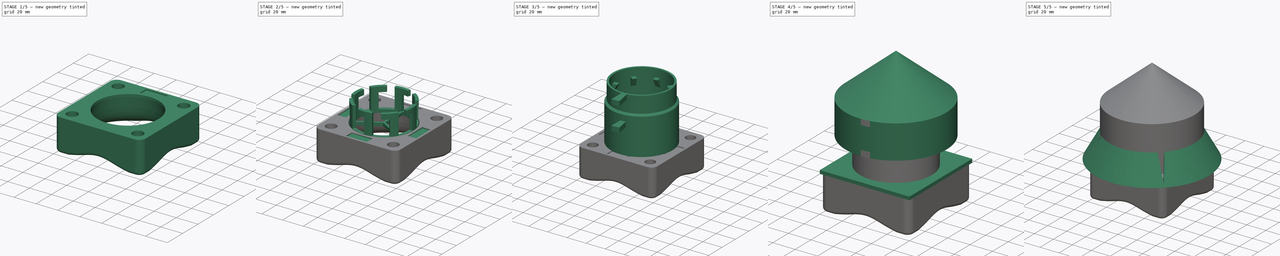
[diagram: build sequence overview — one tinted view per stage of 5, left to right]
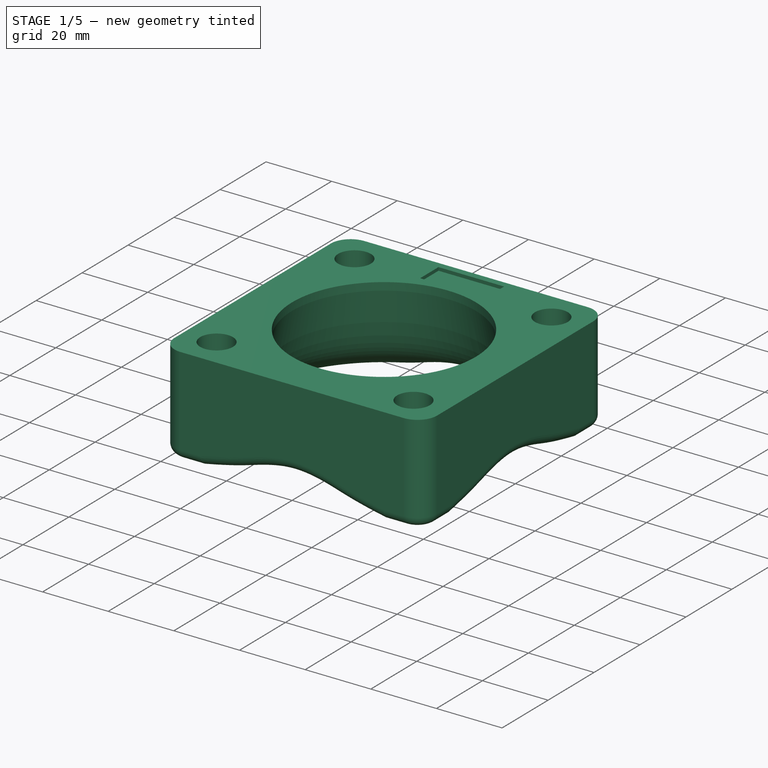
[diagram: stage 1 of 5 — iso view after this stage's code; geometry added in this stage tinted green]
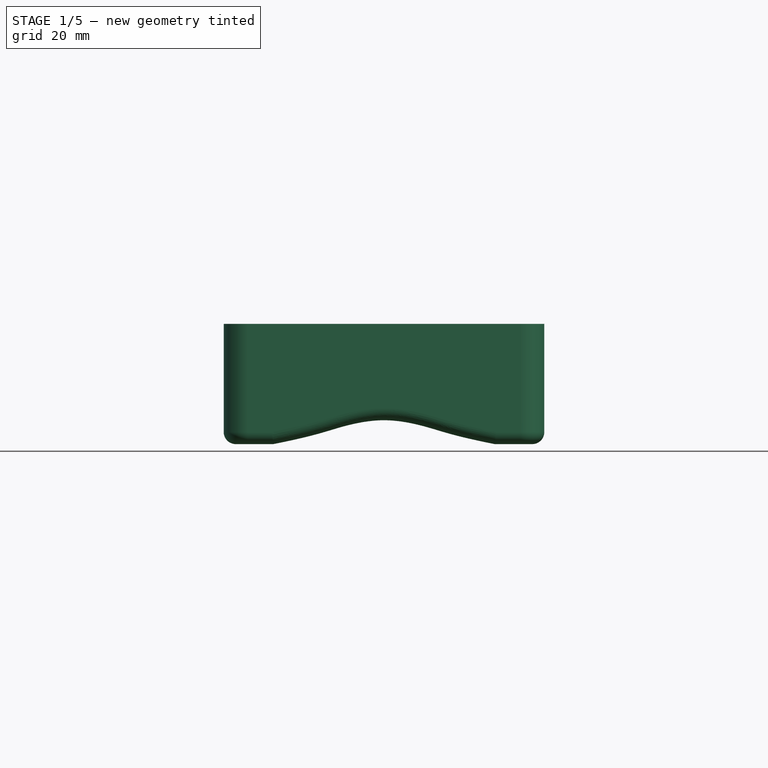
[diagram: stage 1 of 5 — front view after this stage's code; geometry added in this stage tinted green]
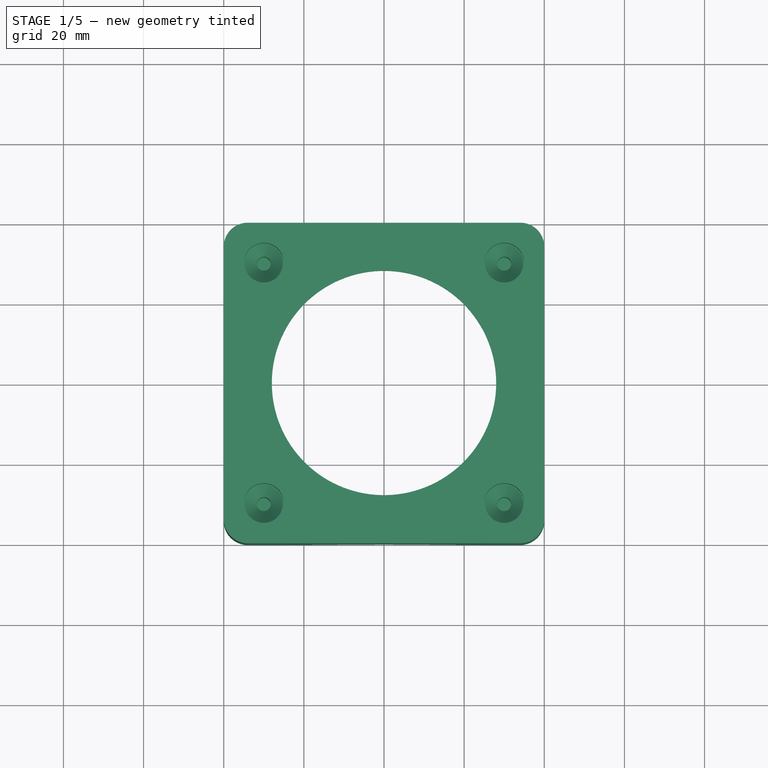
[diagram: stage 1 of 5 — top view after this stage's code; geometry added in this stage tinted green]
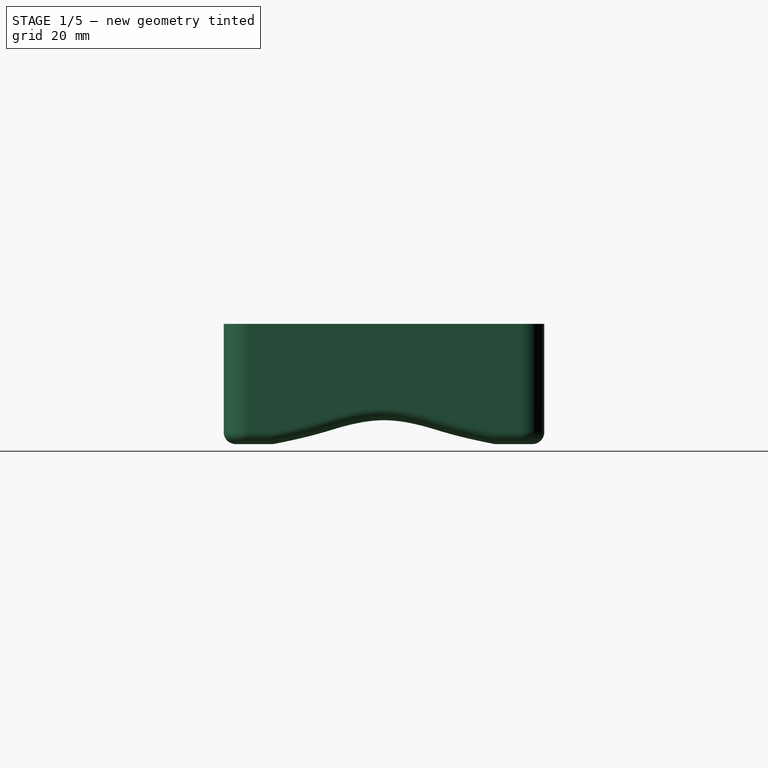
[diagram: stage 1 of 5 — right view after this stage's code; geometry added in this stage tinted green]
FCSTD DOCUMENT  (FreeCAD 0.18.4R)
Label: air-fan-outcome
License: All rights reserved
LicenseURL: http://en.wikipedia.org/wiki/All_rights_reserved
objects: Sketcher::SketchObject×29, PartDesign::Pad×9, PartDesign::Pocket×9, PartDesign::PolarPattern×7, PartDesign::Fillet×5, PartDesign::Revolution×5, PartDesign::Body×5, PartDesign::Chamfer×4, Part::Loft×2, Part::Cut×1, PartDesign::FeatureBase×1, PartDesign::Groove×1
note: 102 computed .brp shape members not serialized (recipe doc carries the construction recipe); baked Part::Feature solids carry a one-line shape summary decoded from their .brp

FEATURE [PartDesign::Body] Body002  label="filter"
  Group = -> [Sketch012,Pad006,Sketch013,Pad007,PolarPattern002,Sketch014,Revolution003,Sketch023,PolarPattern006,Revolution004,PolarPattern007,Chamfer002]
  Origin = -> Origin002
  Placement = pos=(0,0,37) rot=(0,0,1;0.174533rad)
  Tip = -> Chamfer002
FEATURE [Sketcher::SketchObject] Sketch024
  MapMode = 5
  Support = -> [XY_Plane004]
  sketch-geometry (4):
    g0: LineSegment StartX=-40 StartY=-40 StartZ=0 EndX=40 EndY=-40 EndZ=0
    g1: LineSegment StartX=40 StartY=-40 StartZ=0 EndX=40 EndY=40 EndZ=0
    g2: LineSegment StartX=40 StartY=40 StartZ=0 EndX=-40 EndY=40 EndZ=0
    g3: LineSegment StartX=-40 StartY=40 StartZ=0 EndX=-40 EndY=-40 EndZ=0
  constraints (11):
    c: Coincident(g0,g1)
    c: Coincident(g1,g2)
    c: Coincident(g2,g3)
    c: Coincident(g3,g0)
    c: Horizontal(g0)
    c: Horizontal(g2)
    c: Vertical(g1)
    c: Vertical(g3)
    c: DistanceX(g0,g0) = 80
    c: DistanceY(g1,g1) = 80
    c: Symmetric(g2,g0,g-1)
FEATURE [PartDesign::Pad] Pad008
  Length = 30
  Length2 = 100
  Profile = -> Sketch024
  Reversed = true
  Type = 0
FEATURE [PartDesign::Fillet] Fillet002
  Base = -> Pad008 [Edge8,Edge5,Edge1,Edge2]
  BaseFeature = -> Pad008
  Radius = 6
FEATURE [Sketcher::SketchObject] Sketch025
  MapMode = 5
  Support = -> [Fillet002]
  sketch-geometry (1):
    g0: Circle CenterX=0 CenterY=0 CenterZ=0 NormalX=0 NormalY=0 NormalZ=1 AngleXU=0 Radius=28
  constraints (2):
    c: Coincident(g0,g-1)
    c: Diameter(g0) = 56
FEATURE [PartDesign::Pocket] Pocket005
  BaseFeature = -> Fillet002
  Length = 30
  Length2 = 100
  Profile = -> Sketch025
  Type = 0
FEATURE [Sketcher::SketchObject] Sketch026
  MapMode = 5
  Support = -> [Pocket005]
  sketch-geometry (4):
    g0: Circle CenterX=-30 CenterY=30 CenterZ=0 NormalX=0 NormalY=0 NormalZ=1 AngleXU=0 Radius=1.75
    g1: Circle CenterX=30 CenterY=30 CenterZ=0 NormalX=0 NormalY=0 NormalZ=1 AngleXU=0 Radius=1.75
    g2: Circle CenterX=30 CenterY=-30 CenterZ=0 NormalX=0 NormalY=0 NormalZ=1 AngleXU=0 Radius=1.75
    g3: Circle CenterX=-30 CenterY=-30 CenterZ=0 NormalX=0 NormalY=0 NormalZ=1 AngleXU=0 Radius=1.75
  constraints (12):
    c: DistanceX(g0,g-1) = 30
    c: DistanceY(g-1,g0) = 30
    c: DistanceY(g-1,g1) = 30
    c: DistanceY(g2,g-1) = 30
    c: DistanceY(g3,g-1) = 30
    c: DistanceX(g3,g-1) = 30
    c: DistanceX(g-1,g2) = 30
    c: DistanceX(g-1,g1) = 30
    c: Diameter(g0) = 3.5
    c: Diameter(g1) = 3.5
    c: Diameter(g2) = 3.5
    c: Diameter(g3) = 3.5
FEATURE [PartDesign::Pocket] Pocket006
  BaseFeature = -> Pocket005
  Length = 26
  Length2 = 100
  Profile = -> Sketch026
  Type = 0
FEATURE [Sketcher::SketchObject] Sketch027
  ExternalGeometry = -> [Pocket006]
  MapMode = 5
  Support = -> [Pocket006]
  sketch-geometry (4):
    g0: Circle CenterX=-30 CenterY=-30 CenterZ=0 NormalX=0 NormalY=0 NormalZ=1 AngleXU=0 Radius=5
    g1: Circle CenterX=30 CenterY=-30 CenterZ=0 NormalX=0 NormalY=0 NormalZ=1 AngleXU=0 Radius=5
    g2: Circle CenterX=30 CenterY=30 CenterZ=0 NormalX=0 NormalY=0 NormalZ=1 AngleXU=0 Radius=5
    g3: Circle CenterX=-30 CenterY=30 CenterZ=0 NormalX=0 NormalY=0 NormalZ=1 AngleXU=0 Radius=5
  constraints (8):
    c: Coincident(g0,g-6)
    c: Coincident(g1,g-5)
    c: Coincident(g2,g-4)
    c: Coincident(g3,g-3)
    c: Diameter(g3) = 10
    c: Diameter(g2) = 10
    c: Diameter(g1) = 10
    c: Diameter(g0) = 10
FEATURE [PartDesign::Pocket] Pocket007
  BaseFeature = -> Pocket006
  Length = 10
  Length2 = 100
  Profile = -> Sketch027
  Type = 0
FEATURE [PartDesign::Chamfer] Chamfer003
  Base = -> Pocket007 [Edge43,Edge42,Edge41,Edge40]
  BaseFeature = -> Pocket007
  Size = 3
FEATURE [Sketcher::SketchObject] Sketch028
  AttachmentOffset = pos=(0,0,0) rot=(0,1,0;0.785398rad)
  MapMode = 5
  Placement = pos=(0,0,0) rot=(0.862856,0.357407,0.357407;1.71777rad)
  Support = -> [XZ_Plane004]
  sketch-geometry (15):
    g0-g5: Circle [constr] x6 (B-spline internal-alignment scaffolding for g6; pole/knot coordinates omitted)
    g6: BSplineCurve PolesCount=6 KnotsCount=4 Degree=3 IsPeriodic=0
    g7-g10: GeomPoint [constr] x4 (B-spline internal-alignment scaffolding for g6; pole/knot coordinates omitted)
    g11: LineSegment StartX=-47.1314 StartY=-30.3808 StartZ=0 EndX=-30.2273 EndY=-45.7605 EndZ=0
    g12: LineSegment StartX=-30.2273 StartY=-45.7605 StartZ=0 EndX=-12.9068 EndY=-36.4214 EndZ=0
    g13: LineSegment StartX=-12.9068 StartY=-36.4214 StartZ=0 EndX=-23.7892 EndY=4.70168 EndZ=0
    g14: LineSegment StartX=-23.7892 StartY=4.70168 StartZ=0 EndX=-27.1906 EndY=3.55555 EndZ=0
  constraints (9):
    c: Radius(g0) = 2
    c: Equal(g0, g1-g5) x5
    c: InternalAlignment(g0-g5 -> g6) x6
    c: InternalAlignment(g7-g10 -> g6) x4
    c: Coincident(g11,g6)
    c: Coincident(g11,g12)
    c: Coincident(g12,g13)
    c: Coincident(g13,g14)
    c: Coincident(g14,g6)
FEATURE [PartDesign::Groove] Groove
  Angle = 360
  Axis = (0,-2e-16,1)
  Base = (0,0,0)
  BaseFeature = -> Chamfer003
  Profile = -> Sketch028
  ReferenceAxis = -> Sketch028 [V_Axis]
  Reversed = true
FEATURE [PartDesign::Fillet] Fillet003
  Base = -> Groove [Edge22,Edge23,Edge24,Edge31,Edge42,Edge43,Edge44,Edge36]
  BaseFeature = -> Groove
  Radius = 3
FEATURE [Sketcher::SketchObject] Sketch029
  MapMode = 5
  Support = -> [Fillet003]
  sketch-geometry (4):
    g0: LineSegment StartX=-10 StartY=38 StartZ=0 EndX=10 EndY=38 EndZ=0
    g1: LineSegment StartX=10 StartY=38 StartZ=0 EndX=10 EndY=30 EndZ=0
    g2: LineSegment StartX=10 StartY=30 StartZ=0 EndX=-10 EndY=30 EndZ=0
    g3: LineSegment StartX=-10 StartY=30 StartZ=0 EndX=-10 EndY=38 EndZ=0
  constraints (11):
    c: Coincident(g0,g1)
    c: Coincident(g1,g2)
    c: Coincident(g2,g3)
    c: Coincident(g3,g0)
    c: Horizontal(g2)
    c: Vertical(g1)
    c: Vertical(g3)
    c: DistanceX(g0,g0) = 20
    c: Symmetric(g0,g0,g-2)
    c: DistanceY(g-1,g0) = 38
    c: DistanceY(g1,g1) = 8
FEATURE [PartDesign::Pocket] Pocket008
  BaseFeature = -> Fillet003
  Length = 1
  Length2 = 100
  Profile = -> Sketch029
  Type = 0
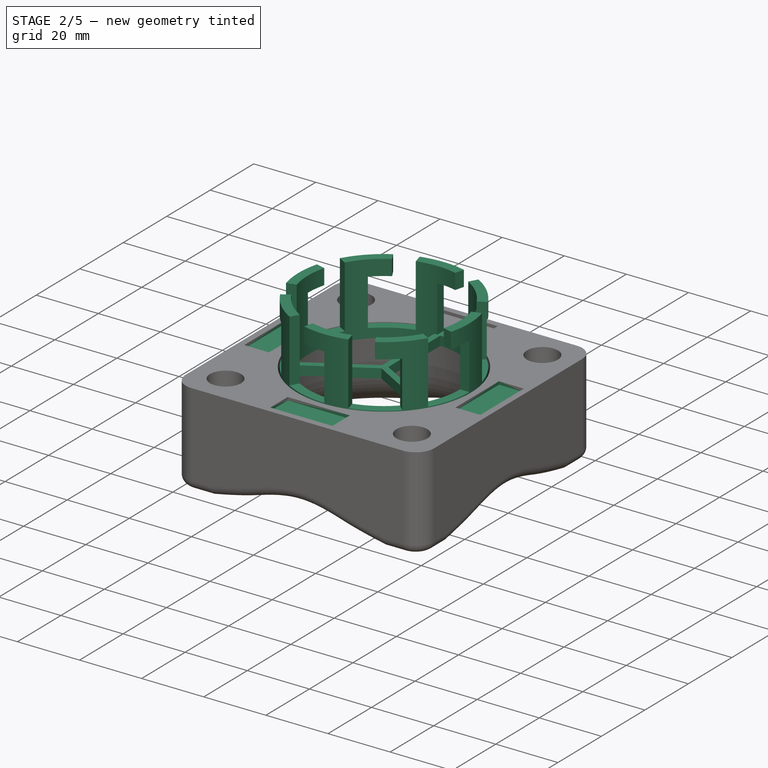
[diagram: stage 2 of 5 — iso view after this stage's code; geometry added in this stage tinted green]
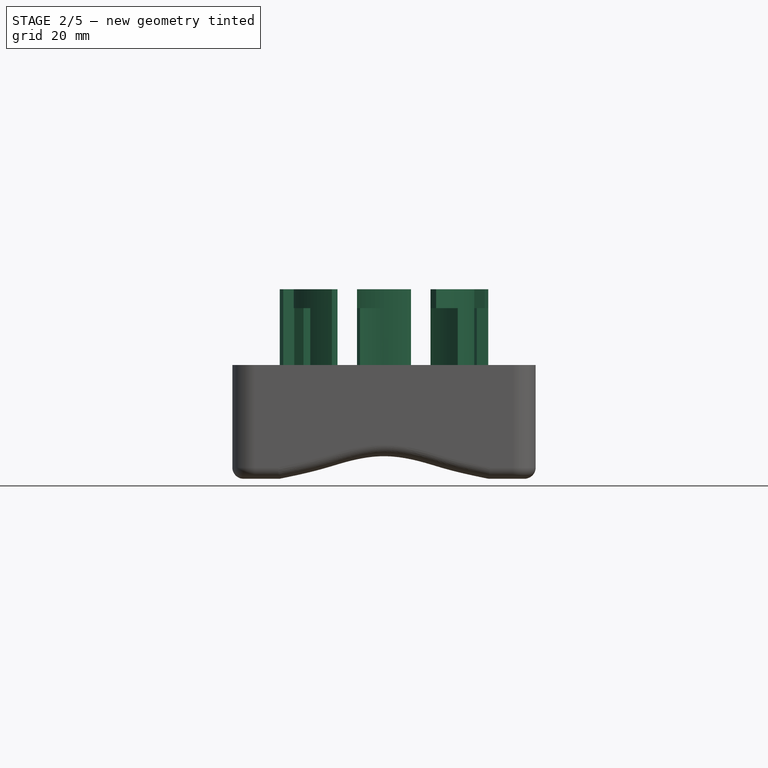
[diagram: stage 2 of 5 — front view after this stage's code; geometry added in this stage tinted green]
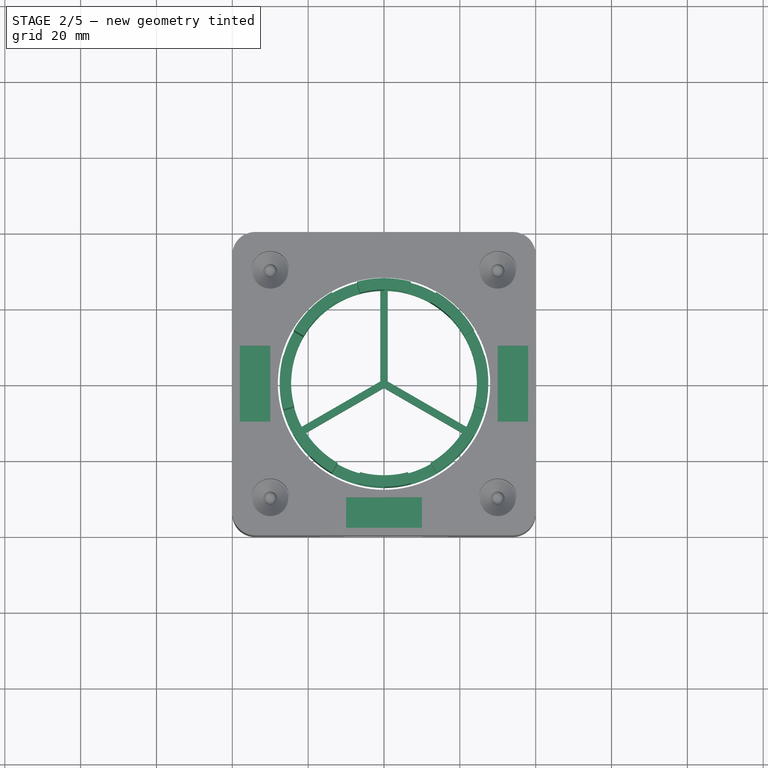
[diagram: stage 2 of 5 — top view after this stage's code; geometry added in this stage tinted green]
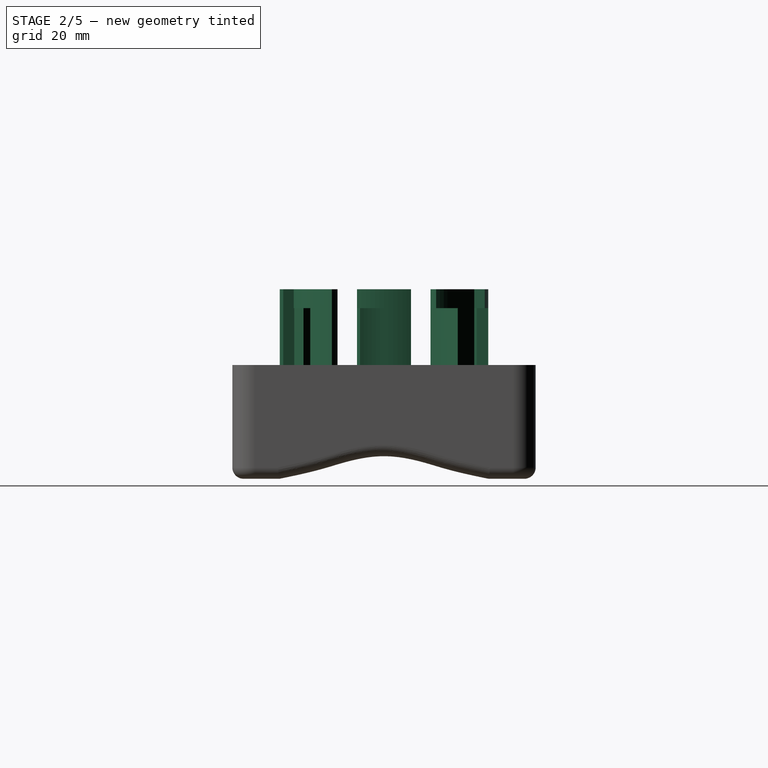
[diagram: stage 2 of 5 — right view after this stage's code; geometry added in this stage tinted green]
FEATURE [Sketcher::SketchObject] Sketch012
  MapMode = 5
  Support = -> [XY_Plane002]
  sketch-geometry (2):
    g0: Circle CenterX=0 CenterY=0 CenterZ=0 NormalX=0 NormalY=0 NormalZ=1 AngleXU=0 Radius=27.5
    g1: Circle CenterX=0 CenterY=0 CenterZ=0 NormalX=0 NormalY=0 NormalZ=1 AngleXU=0 Radius=24.5
  constraints (4):
    c: Coincident(g0,g-1)
    c: Coincident(g1,g0)
    c: Diameter(g0) = 55
    c: Diameter(g1) = 49
FEATURE [PartDesign::Pad] Pad006
  Length = 3
  Length2 = 100
  Profile = -> Sketch012
  Reversed = true
  Type = 0
FEATURE [Sketcher::SketchObject] Sketch013
  MapMode = 5
  Support = -> [XY_Plane002]
  sketch-geometry (4):
    g0: LineSegment StartX=-1 StartY=27 StartZ=0 EndX=1 EndY=27 EndZ=0
    g1: LineSegment StartX=1 StartY=27 StartZ=0 EndX=1 EndY=0 EndZ=0
    g2: LineSegment StartX=1 StartY=0 StartZ=0 EndX=-1 EndY=0 EndZ=0
    g3: LineSegment StartX=-1 StartY=0 StartZ=0 EndX=-1 EndY=27 EndZ=0
  constraints (12):
    c: Coincident(g0,g1)
    c: Coincident(g1,g2)
    c: Coincident(g2,g3)
    c: Coincident(g3,g0)
    c: Horizontal(g0)
    c: Horizontal(g2)
    c: Vertical(g1)
    c: Vertical(g3)
    c: PointOnObject(g1,g-1)
    c: DistanceX(g2,g2) = 2
    c: DistanceX(g2,g-1) = 1
    c: DistanceY(g1,g1) = 27
FEATURE [PartDesign::Pad] Pad007
  BaseFeature = -> Pad006
  Length = 3
  Length2 = 100
  Profile = -> Sketch013
  Reversed = true
  Type = 0
FEATURE [PartDesign::PolarPattern] PolarPattern002
  Angle = 360
  Axis = -> Z_Axis002
  BaseFeature = -> Pad007
  Occurrences = 3
  Originals = -> [Pad007]
FEATURE [Sketcher::SketchObject] Sketch014
  MapMode = 5
  Placement = pos=(0,0,0) rot=(1,0,0;1.5708rad)
  Support = -> [XZ_Plane002]
  sketch-geometry (4):
    g0: LineSegment StartX=-27.5 StartY=20 StartZ=0 EndX=-24.5 EndY=20 EndZ=0
    g1: LineSegment StartX=-24.5 StartY=20 StartZ=0 EndX=-24.5 EndY=0 EndZ=0
    g2: LineSegment StartX=-24.5 StartY=0 StartZ=0 EndX=-27.5 EndY=0 EndZ=0
    g3: LineSegment StartX=-27.5 StartY=0 StartZ=0 EndX=-27.5 EndY=20 EndZ=0
  constraints (12):
    c: Coincident(g0,g1)
    c: Coincident(g1,g2)
    c: Coincident(g2,g3)
    c: Coincident(g3,g0)
    c: Horizontal(g0)
    c: Horizontal(g2)
    c: Vertical(g1)
    c: Vertical(g3)
    c: PointOnObject(g1,g-1)
    c: DistanceX(g0,g0) = 3
    c: DistanceX(g2,g-1) = 27.5
    c: DistanceY(g1,g1) = 20
FEATURE [PartDesign::Revolution] Revolution003
  Angle = 15
  Axis = (0,-2e-16,1)
  Base = (0,0,0)
  BaseFeature = -> PolarPattern002
  Profile = -> Sketch014
  ReferenceAxis = -> Sketch014 [V_Axis]
FEATURE [PartDesign::Body] Body001  label="top"
  Group = -> [Sketch004,Pad002,Sketch005,Pad003,Chamfer,Chamfer001,Sketch006,Revolution,PolarPattern,Sketch007,Revolution001,PolarPattern001,Sketch008,Revolution002,Sketch009,Pad004,Sketch010,Pad005,Sketch011,Pocket002,Fillet001,Sketch021,Pocket004]
  Origin = -> Origin001
  Placement = pos=(0,0,3) rot=(0,0,1;0rad)
  Tip = -> Pocket004
FEATURE [Sketcher::SketchObject] Sketch023
  ExternalGeometry = -> [Revolution003]
  MapMode = 5
  Placement = pos=(0,0,0) rot=(0,0.707107,0.707107;3.14159rad)
  Support = -> [Revolution003]
  sketch-geometry (4):
    g0: LineSegment StartX=24.5 StartY=20 StartZ=0 EndX=27.5 EndY=20 EndZ=0
    g1: LineSegment StartX=27.5 StartY=20 StartZ=0 EndX=27.5 EndY=15 EndZ=0
    g2: LineSegment StartX=27.5 StartY=15 StartZ=0 EndX=24.5 EndY=15 EndZ=0
    g3: LineSegment StartX=24.5 StartY=15 StartZ=0 EndX=24.5 EndY=20 EndZ=0
  constraints (11):
    c: Coincident(g0,g1)
    c: Coincident(g1,g2)
    c: Coincident(g2,g3)
    c: Coincident(g3,g0)
    c: Horizontal(g0)
    c: Horizontal(g2)
    c: Vertical(g1)
    c: Vertical(g3)
    c: Coincident(g0,g-3)
    c: PointOnObject(g-3,g1)
    c: DistanceY(g1,g1) = 5
FEATURE [PartDesign::PolarPattern] PolarPattern006
  Angle = 360
  Axis = -> Z_Axis002
  BaseFeature = -> Revolution003
  Occurrences = 8
  Originals = -> [Revolution003]
FEATURE [PartDesign::Revolution] Revolution004
  Angle = 15
  Axis = (0,-2e-16,1)
  Base = (0,0,0)
  BaseFeature = -> PolarPattern006
  Profile = -> Sketch023
  ReferenceAxis = -> Sketch023 [V_Axis]
  Reversed = true
FEATURE [PartDesign::PolarPattern] PolarPattern007
  Angle = 360
  Axis = -> Z_Axis002
  BaseFeature = -> Revolution004
  Occurrences = 8
  Originals = -> [Revolution004]
FEATURE [PartDesign::PolarPattern] PolarPattern008
  Angle = 360
  Axis = -> Z_Axis004
  BaseFeature = -> Pocket008
  Occurrences = 4
  Originals = -> [Pocket008]
FEATURE [PartDesign::Fillet] Fillet004
  Base = -> PolarPattern008 [Face69,Face68,Face70,Face71]
  BaseFeature = -> PolarPattern008
  Radius = 1.5
FEATURE [PartDesign::Body] Body004  label="cup"
  Group = -> [Sketch024,Pad008,Fillet002,Sketch025,Pocket005,Sketch026,Pocket006,Sketch027,Pocket007,Chamfer003,Sketch028,Groove,Fillet003,Sketch029,Pocket008,PolarPattern008,Fillet004]
  Origin = -> Origin004
  Tip = -> Fillet004
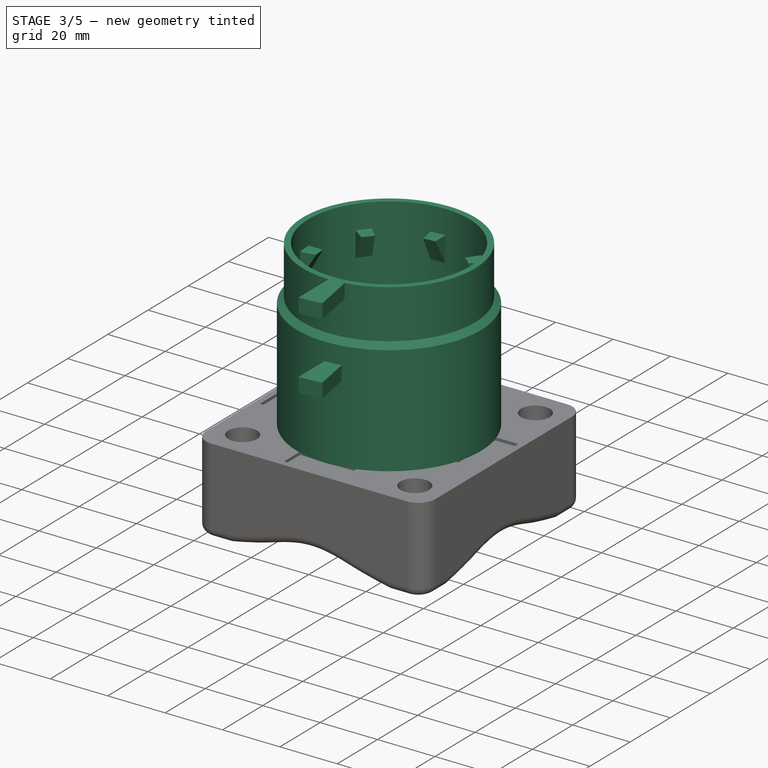
[diagram: stage 3 of 5 — iso view after this stage's code; geometry added in this stage tinted green]
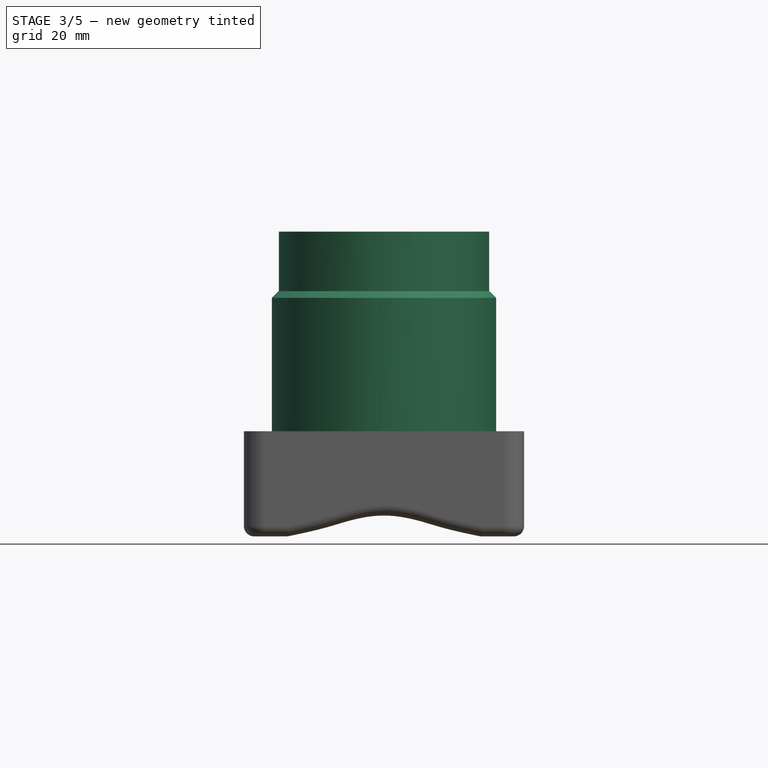
[diagram: stage 3 of 5 — front view after this stage's code; geometry added in this stage tinted green]
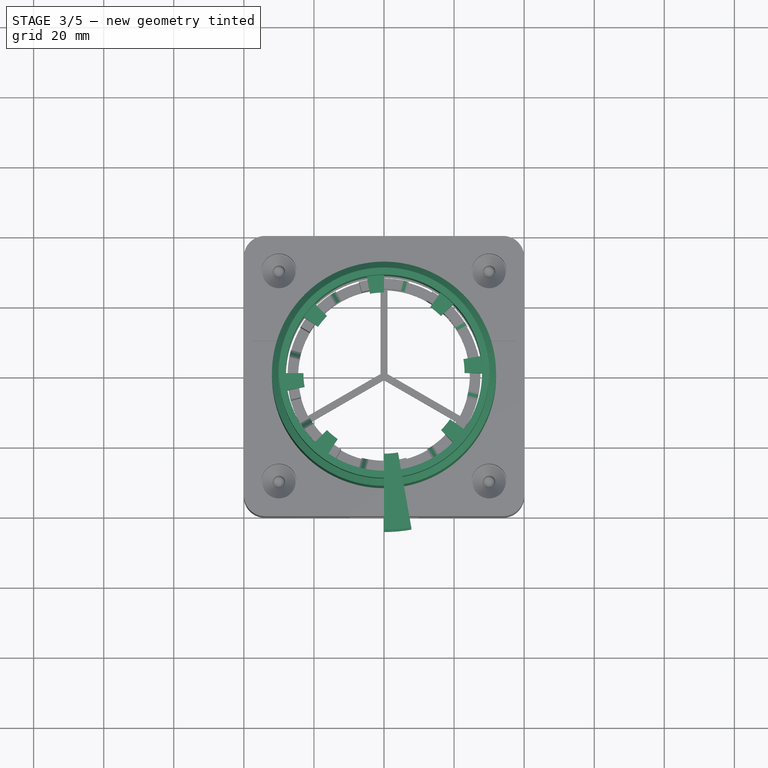
[diagram: stage 3 of 5 — top view after this stage's code; geometry added in this stage tinted green]
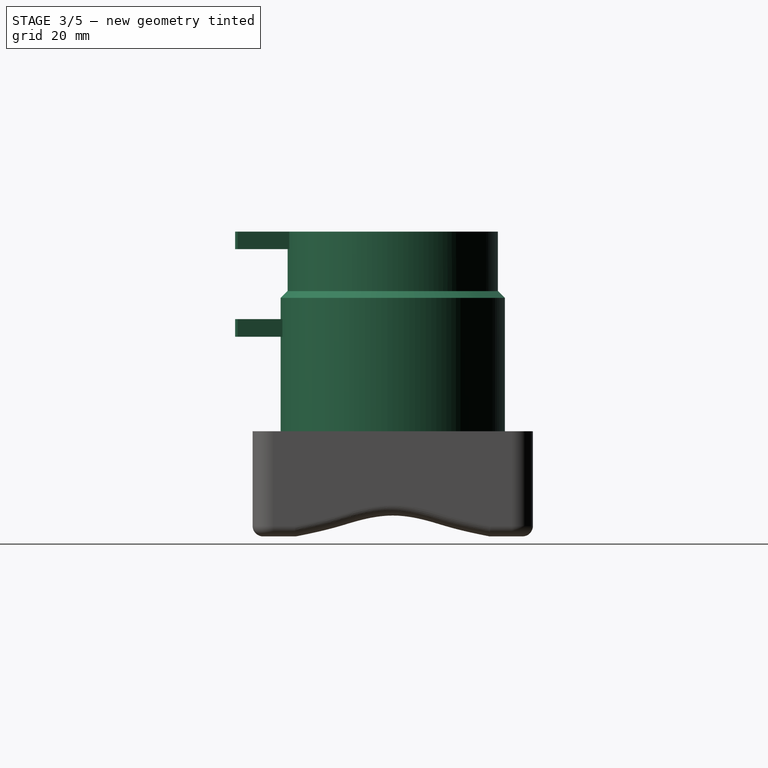
[diagram: stage 3 of 5 — right view after this stage's code; geometry added in this stage tinted green]
FEATURE [Sketcher::SketchObject] Sketch004
  MapMode = 5
  Support = -> [XY_Plane001]
  sketch-geometry (2):
    g0: Circle CenterX=0 CenterY=0 CenterZ=0 NormalX=0 NormalY=0 NormalZ=1 AngleXU=0 Radius=30
    g1: Circle CenterX=0 CenterY=0 CenterZ=0 NormalX=0 NormalY=0 NormalZ=1 AngleXU=0 Radius=32
  constraints (4):
    c: Coincident(g0,g-1)
    c: Coincident(g1,g0)
    c: Diameter(g0) = 60
    c: Diameter(g1) = 64
FEATURE [PartDesign::Pad] Pad002
  Length = 40
  Length2 = 100
  Profile = -> Sketch004
  Type = 0
FEATURE [Sketcher::SketchObject] Sketch005
  AttachmentOffset = pos=(0,0,-13) rot=(0,0,1;0rad)
  MapMode = 5
  Placement = pos=(0,0,27) rot=(0,0,1;0rad)
  Support = -> [Pad002]
  sketch-geometry (2):
    g0: Circle CenterX=0 CenterY=0 CenterZ=0 NormalX=0 NormalY=0 NormalZ=1 AngleXU=0 Radius=28
    g1: Circle CenterX=0 CenterY=0 CenterZ=0 NormalX=0 NormalY=0 NormalZ=1 AngleXU=0 Radius=30
  constraints (4):
    c: Coincident(g0,g-1)
    c: Coincident(g1,g0)
    c: Diameter(g1) = 60
    c: Diameter(g0) = 56
FEATURE [PartDesign::Pad] Pad003
  BaseFeature = -> Pad002
  Length = 30
  Length2 = 100
  Profile = -> Sketch005
  Type = 0
FEATURE [PartDesign::Chamfer] Chamfer
  Base = -> Pad003 [Edge3]
  BaseFeature = -> Pad003
  Size = 1.9
FEATURE [PartDesign::Chamfer] Chamfer001
  Base = -> Chamfer [Edge12]
  BaseFeature = -> Chamfer
  Size = 1.9
FEATURE [Sketcher::SketchObject] Sketch006
  MapMode = 5
  Placement = pos=(0,0,0) rot=(0.57735,0.57735,0.57735;2.0944rad)
  Support = -> [YZ_Plane001]
  sketch-geometry (3):
    g0: LineSegment StartX=-28 StartY=40 StartZ=0 EndX=-28 EndY=48.6603 EndZ=0
    g1: LineSegment StartX=-28 StartY=48.6603 StartZ=0 EndX=-23 EndY=48.6603 EndZ=0
    g2: LineSegment StartX=-23 StartY=48.6603 StartZ=0 EndX=-28 EndY=40 EndZ=0
  constraints (9):
    c: Vertical(g0)
    c: Coincident(g0,g1)
    c: Horizontal(g1)
    c: Coincident(g1,g2)
    c: Coincident(g2,g0)
    c: DistanceX(g1,g1) = 5
    c: Angle(g2,g0) = 0.523599
    c: DistanceX(g0,g-1) = 28
    c: DistanceY(g-1,g0) = 40
FEATURE [PartDesign::Revolution] Revolution
  Angle = 10
  Axis = (-2e-16,3e-16,1)
  Base = (0,0,0)
  BaseFeature = -> Chamfer001
  Profile = -> Sketch006
  ReferenceAxis = -> Sketch006 [V_Axis]
FEATURE [PartDesign::PolarPattern] PolarPattern
  Angle = 360
  Axis = -> Z_Axis001
  BaseFeature = -> Revolution
  Occurrences = 8
  Originals = -> [Revolution]
FEATURE [Sketcher::SketchObject] Sketch007
  MapMode = 5
  Placement = pos=(0,0,0) rot=(0.57735,0.57735,0.57735;2.0944rad)
  Support = -> [YZ_Plane001]
  sketch-geometry (8):
    g0: LineSegment StartX=-45 StartY=57 StartZ=0 EndX=-30 EndY=57 EndZ=0
    g1: LineSegment StartX=-30 StartY=57 StartZ=0 EndX=-30 EndY=52 EndZ=0
    g2: LineSegment StartX=-30 StartY=52 StartZ=0 EndX=-45 EndY=52 EndZ=0
    g3: LineSegment StartX=-45 StartY=52 StartZ=0 EndX=-45 EndY=57 EndZ=0
    g4: LineSegment StartX=-45 StartY=32 StartZ=0 EndX=-32 EndY=32 EndZ=0
    g5: LineSegment StartX=-32 StartY=32 StartZ=0 EndX=-32 EndY=27 EndZ=0
    g6: LineSegment StartX=-32 StartY=27 StartZ=0 EndX=-45 EndY=27 EndZ=0
    g7: LineSegment StartX=-45 StartY=27 StartZ=0 EndX=-45 EndY=32 EndZ=0
  constraints (24):
    c: Coincident(g0,g1)
    c: Coincident(g1,g2)
    c: Coincident(g2,g3)
    c: Coincident(g3,g0)
    c: Horizontal(g0)
    c: Horizontal(g2)
    c: Vertical(g1)
    c: Vertical(g3)
    c: Coincident(g4,g5)
    c: Coincident(g5,g6)
    c: Coincident(g6,g7)
    c: Coincident(g7,g4)
    c: Horizontal(g4)
    c: Horizontal(g6)
    c: Vertical(g5)
    c: Vertical(g7)
    c: DistanceY(g3,g3) = 5
    c: DistanceY(g7,g7) = 5
    c: DistanceY(g-1,g0) = 57
    c: DistanceY(g4,g1) = 20
    c: DistanceX(g1,g-1) = 30
    c: DistanceX(g1,g4) = -2
    c: DistanceX(g2,g-1) = 45
    c: PointOnObject(g4,g3)
FEATURE [PartDesign::Revolution] Revolution001
  Angle = 10
  Axis = (-2e-16,3e-16,1)
  Base = (0,0,0)
  BaseFeature = -> PolarPattern
  Profile = -> Sketch007
  ReferenceAxis = -> Sketch007 [V_Axis]
FEATURE [PartDesign::Chamfer] Chamfer002
  Base = -> PolarPattern007 [Edge234,Edge236,Edge243,Edge245,Edge248,Edge250,Edge253,Edge255,Edge262,Edge264,Edge267,Edge269,Edge272,Edge274,Edge231,Edge229]
  BaseFeature = -> PolarPattern007
  Size = 2
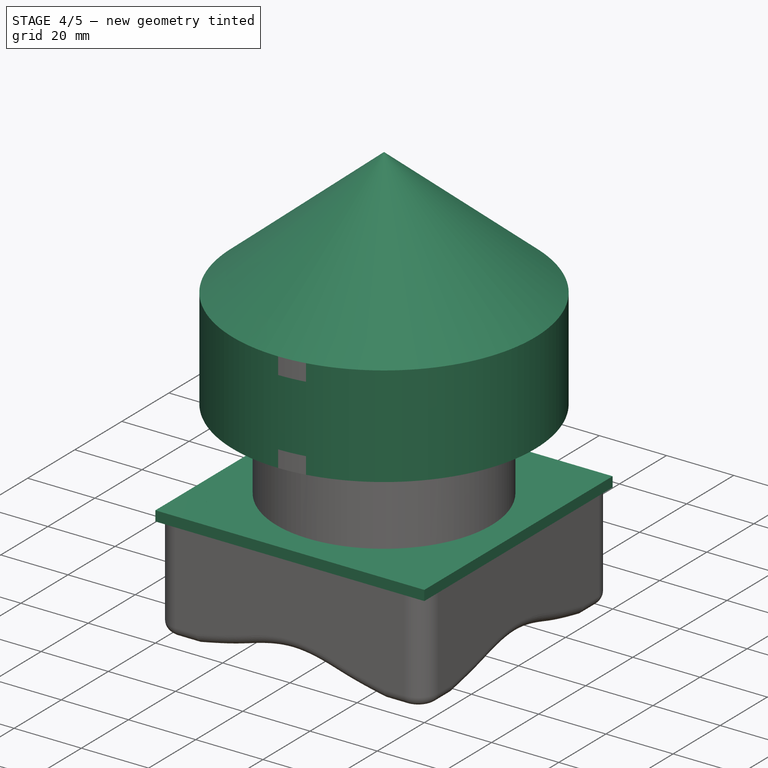
[diagram: stage 4 of 5 — iso view after this stage's code; geometry added in this stage tinted green]
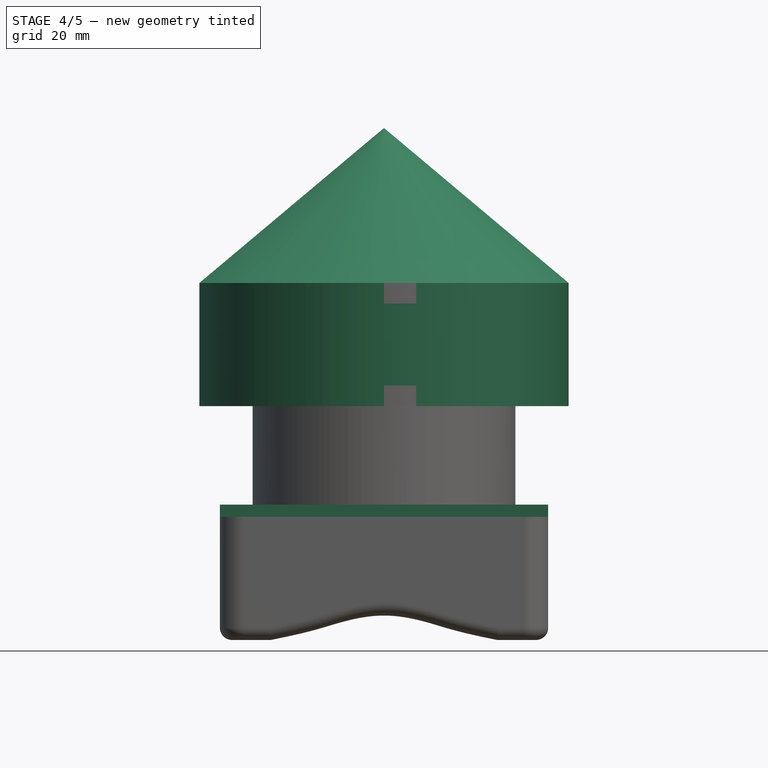
[diagram: stage 4 of 5 — front view after this stage's code; geometry added in this stage tinted green]
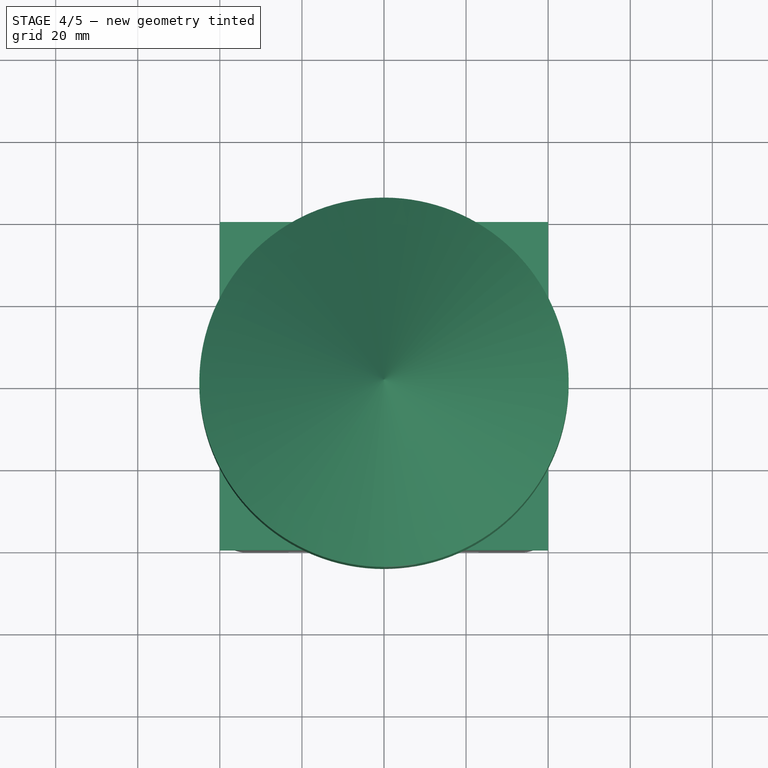
[diagram: stage 4 of 5 — top view after this stage's code; geometry added in this stage tinted green]
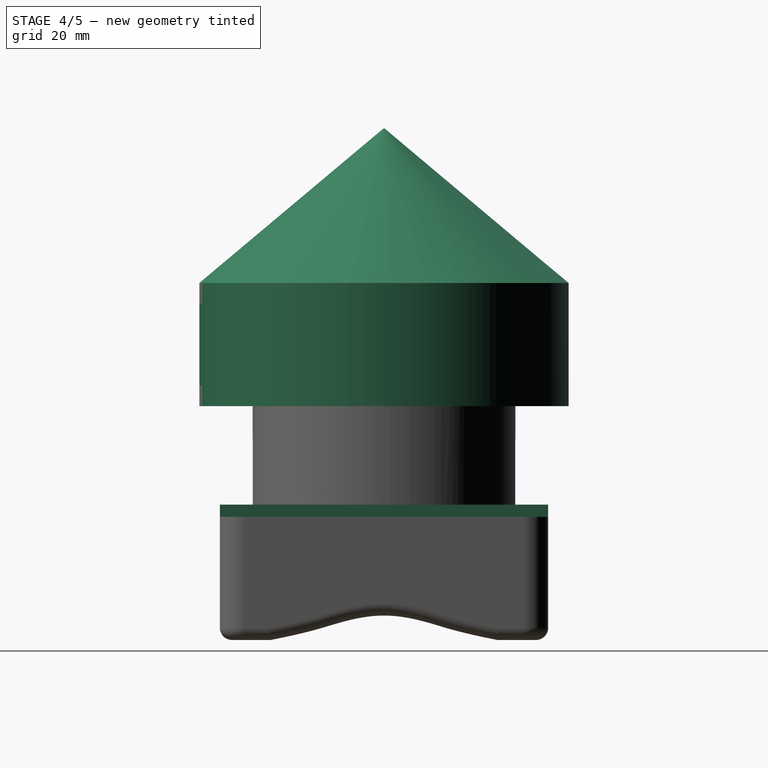
[diagram: stage 4 of 5 — right view after this stage's code; geometry added in this stage tinted green]
FEATURE [Sketcher::SketchObject] Sketch
  MapMode = 5
  Support = -> [XY_Plane]
  sketch-geometry (1):
    g0: Circle CenterX=0 CenterY=0 CenterZ=0 NormalX=0 NormalY=0 NormalZ=1 AngleXU=0 Radius=30
  constraints (2):
    c: Coincident(g0,g-1)
    c: Radius(g0) = 30
FEATURE [PartDesign::Pad] Pad
  Length = 30
  Length2 = 100
  Profile = -> Sketch
  Type = 0
FEATURE [Sketcher::SketchObject] Sketch001
  MapMode = 5
  Support = -> [XY_Plane]
  sketch-geometry (4):
    g0: LineSegment StartX=-40 StartY=40 StartZ=0 EndX=40 EndY=40 EndZ=0
    g1: LineSegment StartX=40 StartY=40 StartZ=0 EndX=40 EndY=-40 EndZ=0
    g2: LineSegment StartX=40 StartY=-40 StartZ=0 EndX=-40 EndY=-40 EndZ=0
    g3: LineSegment StartX=-40 StartY=-40 StartZ=0 EndX=-40 EndY=40 EndZ=0
  constraints (12):
    c: Coincident(g0,g1)
    c: Coincident(g1,g2)
    c: Coincident(g2,g3)
    c: Coincident(g3,g0)
    c: Horizontal(g0)
    c: Horizontal(g2)
    c: Vertical(g1)
    c: Vertical(g3)
    c: DistanceX(g0,g0) = 80
    c: DistanceX(g0,g-1) = 40
    c: DistanceY(g1,g1) = 80
    c: DistanceY(g-1,g0) = 40
FEATURE [PartDesign::Pad] Pad001
  BaseFeature = -> Pad
  Length = 3
  Length2 = 100
  Profile = -> Sketch001
  Type = 0
FEATURE [PartDesign::PolarPattern] PolarPattern001
  Angle = 360
  Axis = -> Z_Axis001
  BaseFeature = -> Revolution001
  Occurrences = 6
  Originals = -> [Revolution001]
FEATURE [Sketcher::SketchObject] Sketch008
  ExternalGeometry = -> [PolarPattern001]
  MapMode = 5
  Placement = pos=(0,0,0) rot=(0.57735,0.57735,0.57735;2.0944rad)
  Support = -> [YZ_Plane001]
  sketch-geometry (4):
    g0: LineSegment StartX=-45 StartY=57 StartZ=0 EndX=0 EndY=94.7595 EndZ=0
    g1: LineSegment StartX=0 StartY=94.7595 StartZ=0 EndX=0 EndY=93.0813 EndZ=0
    g2: LineSegment StartX=0 StartY=93.0813 StartZ=0 EndX=-43 EndY=57 EndZ=0
    g3: LineSegment StartX=-43 StartY=57 StartZ=0 EndX=-45 EndY=57 EndZ=0
  constraints (11):
    c: Coincident(g-3,g0)
    c: PointOnObject(g0,g-2)
    c: Coincident(g0,g1)
    c: PointOnObject(g1,g-2)
    c: Coincident(g1,g2)
    c: Coincident(g2,g3)
    c: Coincident(g3,g0)
    c: Horizontal(g3)
    c: DistanceX(g3,g3) = 2
    c: Parallel(g2,g0)
    c: Angle(g-3,g0) = 2.26893
FEATURE [PartDesign::Revolution] Revolution002
  Angle = 360
  Axis = (-2e-16,3e-16,1)
  Base = (0,0,0)
  BaseFeature = -> PolarPattern001
  Profile = -> Sketch008
  ReferenceAxis = -> Sketch008 [V_Axis]
FEATURE [Sketcher::SketchObject] Sketch009
  MapMode = 5
  Placement = pos=(-1.25e-14,1.6e-14,57) rot=(1,0,0;3.14159rad)
  Support = -> [Revolution002]
  sketch-geometry (2):
    g0: Circle CenterX=0 CenterY=0 CenterZ=0 NormalX=0 NormalY=0 NormalZ=1 AngleXU=0 Radius=45
    g1: Circle CenterX=0 CenterY=0 CenterZ=0 NormalX=0 NormalY=0 NormalZ=1 AngleXU=0 Radius=43
  constraints (4):
    c: Coincident(g0,g-1)
    c: Coincident(g1,g0)
    c: Diameter(g0) = 90
    c: Diameter(g1) = 86
FEATURE [PartDesign::Pad] Pad004
  BaseFeature = -> Revolution002
  Length = 30
  Length2 = 100
  Profile = -> Sketch009
  Type = 0
FEATURE [Sketcher::SketchObject] Sketch010
  MapMode = 5
  Placement = pos=(0,0,0) rot=(1,0,0;3.14159rad)
  Support = -> [Pad004]
  sketch-geometry (5):
    g0: LineSegment StartX=-40 StartY=40 StartZ=0 EndX=40 EndY=40 EndZ=0
    g1: LineSegment StartX=40 StartY=40 StartZ=0 EndX=40 EndY=-40 EndZ=0
    g2: LineSegment StartX=40 StartY=-40 StartZ=0 EndX=-40 EndY=-40 EndZ=0
    g3: LineSegment StartX=-40 StartY=-40 StartZ=0 EndX=-40 EndY=40 EndZ=0
    g4: Circle CenterX=0 CenterY=0 CenterZ=0 NormalX=0 NormalY=0 NormalZ=1 AngleXU=0 Radius=32
  constraints (14):
    c: Coincident(g0,g1)
    c: Coincident(g1,g2)
    c: Coincident(g2,g3)
    c: Coincident(g3,g0)
    c: Horizontal(g0)
    c: Horizontal(g2)
    c: Vertical(g1)
    c: Vertical(g3)
    c: DistanceX(g0,g0) = 80
    c: DistanceX(g0,g-1) = 40
    c: DistanceY(g1,g1) = 80
    c: DistanceY(g-1,g0) = 40
    c: Coincident(g4,g-1)
    c: Diameter(g4) = 64
FEATURE [PartDesign::Pad] Pad005
  BaseFeature = -> Pad004
  Length = 3
  Length2 = 100
  Profile = -> Sketch010
  Reversed = true
  Type = 0
FEATURE [Sketcher::SketchObject] Sketch011
  MapMode = 5
  Placement = pos=(0,0,0) rot=(1,0,0;3.14159rad)
  Support = -> [Pad005]
  sketch-geometry (4):
    g0: Circle CenterX=-30 CenterY=30 CenterZ=0 NormalX=0 NormalY=0 NormalZ=1 AngleXU=0 Radius=3
    g1: Circle CenterX=30 CenterY=30 CenterZ=0 NormalX=0 NormalY=0 NormalZ=1 AngleXU=0 Radius=3
    g2: Circle CenterX=-30 CenterY=-30 CenterZ=0 NormalX=0 NormalY=0 NormalZ=1 AngleXU=0 Radius=3
    g3: Circle CenterX=30 CenterY=-30 CenterZ=0 NormalX=0 NormalY=0 NormalZ=1 AngleXU=0 Radius=3
  constraints (12):
    c: Diameter(g0) = 6
    c: Diameter(g1) = 6
    c: Diameter(g3) = 6
    c: Diameter(g2) = 6
    c: DistanceX(g0,g-1) = 30
    c: DistanceX(g-1,g1) = 30
    c: DistanceX(g2,g-1) = 30
    c: DistanceX(g-1,g3) = 30
    c: DistanceY(g-1,g0) = 30
    c: DistanceY(g-1,g1) = 30
    c: DistanceY(g2,g-1) = 30
    c: DistanceY(g3,g-1) = 30
FEATURE [PartDesign::Pocket] Pocket002
  BaseFeature = -> Pad005
  Length = 3
  Length2 = 100
  Profile = -> Sketch011
  Type = 0
FEATURE [PartDesign::Fillet] Fillet001
  Base = -> Pocket002 [Edge147,Edge145,Edge142,Edge143]
  BaseFeature = -> Pocket002
  Radius = 6
FEATURE [PartDesign::Body] Body003  label="support"
  BaseFeature = -> Cut
  Group = -> [BaseFeature,Sketch016,Sketch017,Sketch018,Sketch019,Sketch020,Pocket003,PolarPattern005]
  Origin = -> Origin003
  Tip = -> PolarPattern005
FEATURE [Sketcher::SketchObject] Sketch021
  ExternalGeometry = -> [Fillet001]
  MapMode = 5
  Placement = pos=(0,0,0) rot=(1,0,0;3.14159rad)
  Support = -> [Fillet001]
  sketch-geometry (1):
    g0: Circle CenterX=0 CenterY=0 CenterZ=0 NormalX=0 NormalY=0 NormalZ=1 AngleXU=0 Radius=30.5
  constraints (3):
    c: Diameter(g-3) = 60
    c: Coincident(g0,g-1)
    c: Diameter(g0) = 61
FEATURE [Sketcher::SketchObject] Sketch022
  ExternalGeometry = -> [Fillet]
  MapMode = 5
  Placement = pos=(0,0,0) rot=(1,0,0;3.14159rad)
  Support = -> [Fillet]
  constraints (1):
    c: Diameter(g-3) = 60
FEATURE [PartDesign::Body] Body  label="plate"
  Group = -> [Sketch,Pad,Sketch001,Pad001,Sketch002,Pocket,Sketch003,Pocket001,Fillet,Sketch022]
  Origin = -> Origin
  Tip = -> Fillet
FEATURE [PartDesign::Pocket] Pocket004
  BaseFeature = -> Fillet001
  Length = 27
  Length2 = 100
  Profile = -> Sketch021
  Type = 0
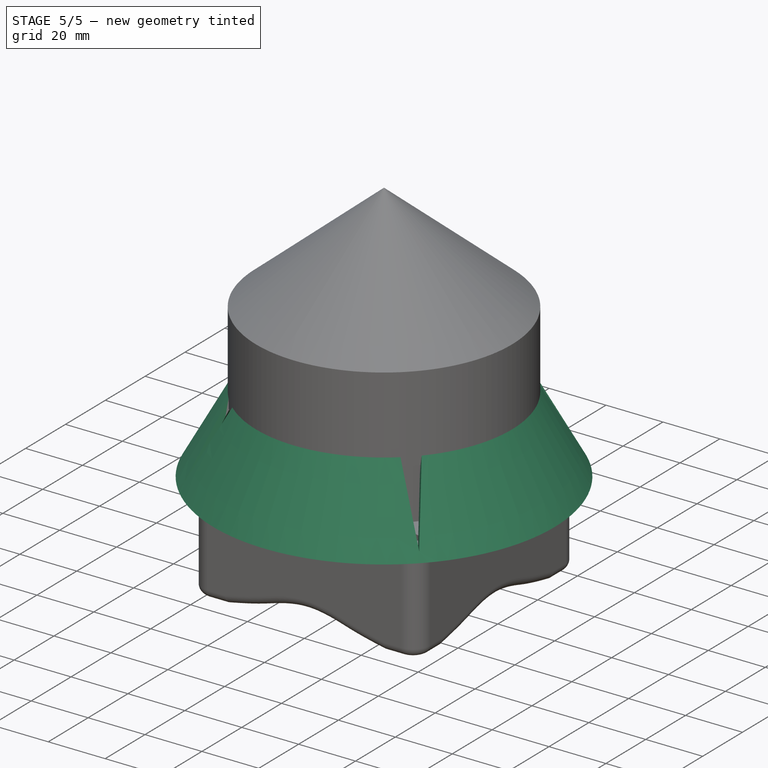
[diagram: stage 5 of 5 — iso view after this stage's code; geometry added in this stage tinted green]
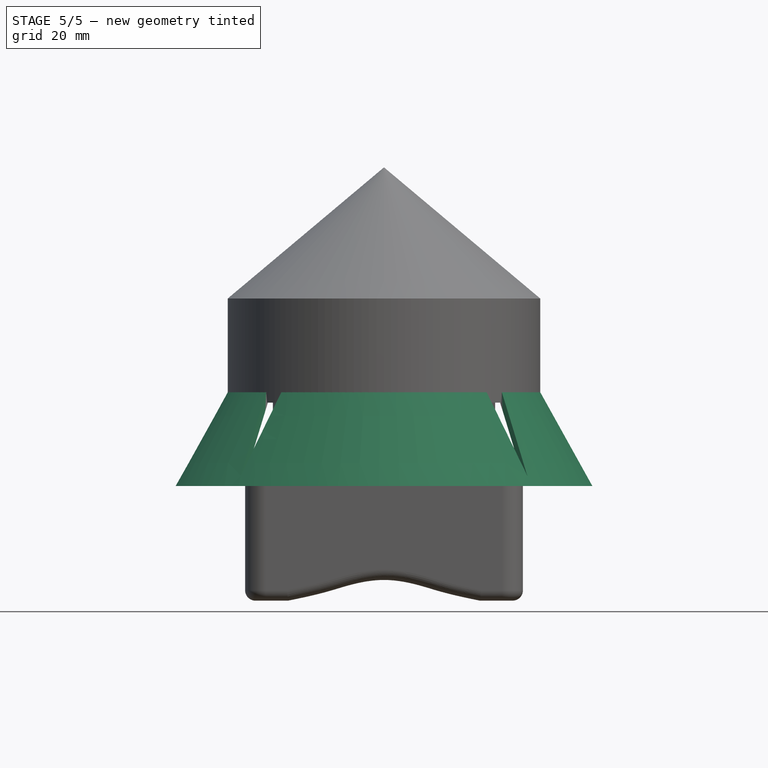
[diagram: stage 5 of 5 — front view after this stage's code; geometry added in this stage tinted green]
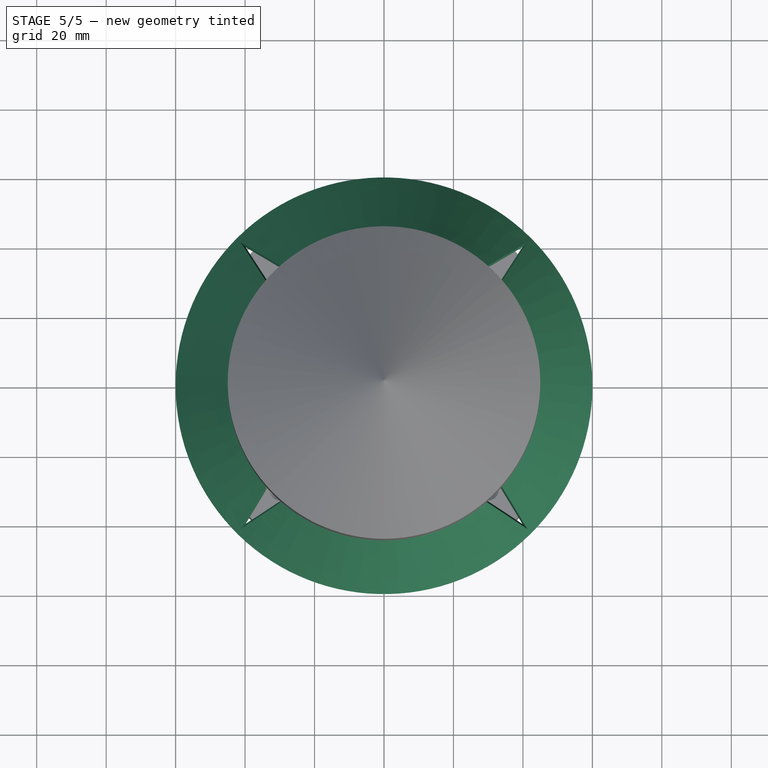
[diagram: stage 5 of 5 — top view after this stage's code; geometry added in this stage tinted green]
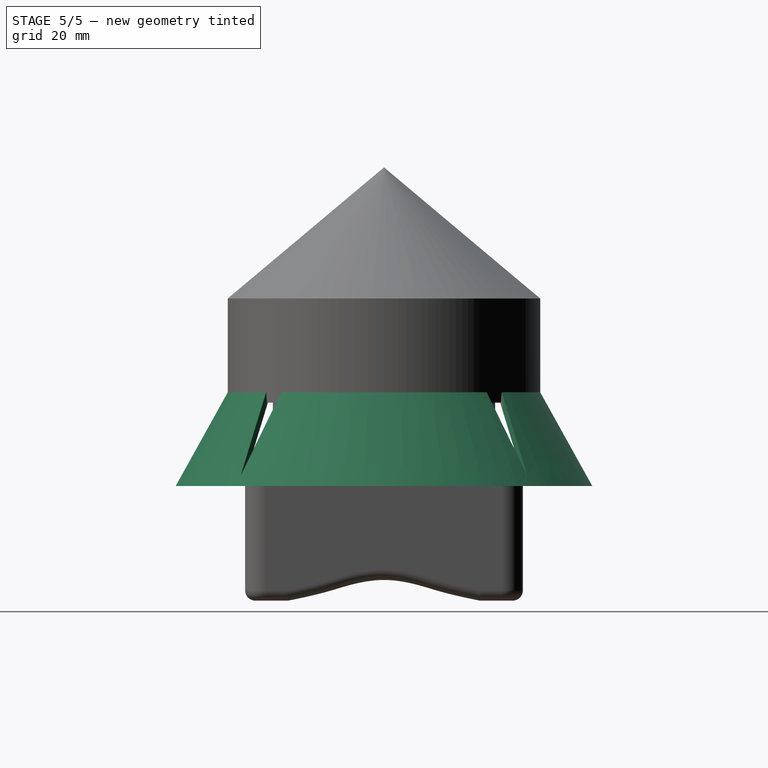
[diagram: stage 5 of 5 — right view after this stage's code; geometry added in this stage tinted green]
FEATURE [Sketcher::SketchObject] Sketch002
  MapMode = 5
  Placement = pos=(0,0,30) rot=(0,0,1;0rad)
  Support = -> [Pad001]
  sketch-geometry (1):
    g0: Circle CenterX=0 CenterY=0 CenterZ=0 NormalX=0 NormalY=0 NormalZ=1 AngleXU=0 Radius=28
  constraints (2):
    c: Coincident(g0,g-1)
    c: Radius(g0) = 28
FEATURE [PartDesign::Pocket] Pocket
  BaseFeature = -> Pad001
  Length = 53
  Length2 = 100
  Profile = -> Sketch002
  Type = 0
FEATURE [Sketcher::SketchObject] Sketch003
  MapMode = 5
  Placement = pos=(0,0,0) rot=(1,0,0;3.14159rad)
  Support = -> [Pocket]
  sketch-geometry (4):
    g0: Circle CenterX=-30 CenterY=30 CenterZ=0 NormalX=0 NormalY=0 NormalZ=1 AngleXU=0 Radius=3
    g1: Circle CenterX=30 CenterY=30 CenterZ=0 NormalX=0 NormalY=0 NormalZ=1 AngleXU=0 Radius=3
    g2: Circle CenterX=30 CenterY=-30 CenterZ=0 NormalX=0 NormalY=0 NormalZ=1 AngleXU=0 Radius=3
    g3: Circle CenterX=-30 CenterY=-30 CenterZ=0 NormalX=0 NormalY=0 NormalZ=1 AngleXU=0 Radius=3
  constraints (12):
    c: Diameter(g0) = 6
    c: Diameter(g1) = 6
    c: Diameter(g3) = 6
    c: Diameter(g2) = 6
    c: DistanceX(g0,g-1) = 30
    c: DistanceY(g-1,g0) = 30
    c: DistanceY(g-1,g1) = 30
    c: DistanceY(g2,g-1) = 30
    c: DistanceY(g3,g-1) = 30
    c: DistanceX(g-1,g2) = 30
    c: DistanceX(g3,g-1) = 30
    c: DistanceX(g-1,g1) = 30
FEATURE [PartDesign::Pocket] Pocket001
  BaseFeature = -> Pocket
  Length = 3
  Length2 = 100
  Profile = -> Sketch003
  Type = 0
FEATURE [PartDesign::Fillet] Fillet
  Base = -> Pocket001 [Edge16,Edge18,Edge14,Edge13]
  BaseFeature = -> Pocket001
  Radius = 6
FEATURE [Sketcher::SketchObject] Sketch016
  AttachmentOffset = pos=(0,0,3) rot=(0,0,1;0rad)
  MapMode = 5
  Placement = pos=(0,0,3) rot=(0,0,1;0rad)
  Support = -> [XY_Plane003]
  sketch-geometry (1):
    g0: Circle CenterX=0 CenterY=0 CenterZ=0 NormalX=0 NormalY=0 NormalZ=1 AngleXU=0 Radius=60
  constraints (2):
    c: Coincident(g0,g-1)
    c: Diameter(g0) = 120
FEATURE [Sketcher::SketchObject] Sketch017
  AttachmentOffset = pos=(0,0,30) rot=(0,0,1;0rad)
  MapMode = 5
  Placement = pos=(0,0,30) rot=(0,0,1;0rad)
  Support = -> [XY_Plane003]
  sketch-geometry (1):
    g0: Circle CenterX=0 CenterY=0 CenterZ=0 NormalX=0 NormalY=0 NormalZ=1 AngleXU=0 Radius=45
  constraints (2):
    c: Coincident(g0,g-1)
    c: Diameter(g0) = 90
FEATURE [Part::Loft] Loft
  Closed = false
  MaxDegree = 5
  Ruled = false
  Sections = -> [Sketch016,Sketch017]
  Solid = true
FEATURE [Sketcher::SketchObject] Sketch018
  AttachmentOffset = pos=(0,0,3) rot=(0,0,1;0rad)
  MapMode = 5
  Placement = pos=(0,0,3) rot=(0,0,1;0rad)
  Support = -> [XY_Plane003]
  sketch-geometry (1):
    g0: Circle CenterX=0 CenterY=0 CenterZ=0 NormalX=0 NormalY=0 NormalZ=1 AngleXU=0 Radius=58
  constraints (2):
    c: Coincident(g0,g-1)
    c: Diameter(g0) = 116
FEATURE [Sketcher::SketchObject] Sketch019
  AttachmentOffset = pos=(0,0,30) rot=(0,0,1;0rad)
  MapMode = 5
  Placement = pos=(0,0,30) rot=(0,0,1;0rad)
  Support = -> [XY_Plane003]
  sketch-geometry (1):
    g0: Circle CenterX=0 CenterY=0 CenterZ=0 NormalX=0 NormalY=0 NormalZ=1 AngleXU=0 Radius=43
  constraints (2):
    c: Coincident(g0,g-1)
    c: Diameter(g0) = 86
FEATURE [Part::Loft] Loft001
  Closed = false
  MaxDegree = 5
  Ruled = false
  Sections = -> [Sketch018,Sketch019]
  Solid = true
FEATURE [Part::Cut] Cut
  Base = -> Loft
  Tool = -> Loft001
FEATURE [PartDesign::FeatureBase] BaseFeature
  BaseFeature = -> Cut
FEATURE [Sketcher::SketchObject] Sketch020
  AttachmentOffset = pos=(-50,0,-50) rot=(0,1,0;0.785398rad)
  MapMode = 5
  Placement = pos=(-50,-50,0) rot=(0.281085,0.678598,0.678598;2.59356rad)
  Support = -> [YZ_Plane003]
  sketch-geometry (3):
    g0: LineSegment StartX=0 StartY=6 StartZ=0 EndX=-3.74832 EndY=35.0909 EndZ=0
    g1: LineSegment StartX=-3.74832 StartY=35.0909 StartZ=0 EndX=3.74832 EndY=35.0909 EndZ=0
    g2: LineSegment StartX=3.74832 StartY=35.0909 StartZ=0 EndX=-4e-16 EndY=6 EndZ=0
  constraints (7):
    c: PointOnObject(g0,g-2)
    c: Coincident(g0,g1)
    c: Horizontal(g1)
    c: Coincident(g1,g2)
    c: Coincident(g2,g0)
    c: Equal(g2,g0)
    c: DistanceY(g-1,g0) = 6
FEATURE [PartDesign::Pocket] Pocket003
  BaseFeature = -> BaseFeature
  Length = 33
  Length2 = 100
  Profile = -> Sketch020
  Reversed = true
  Type = 0
FEATURE [PartDesign::PolarPattern] PolarPattern005
  Angle = 360
  Axis = -> Z_Axis003
  BaseFeature = -> Pocket003
  Occurrences = 4
  Originals = -> [Pocket003]
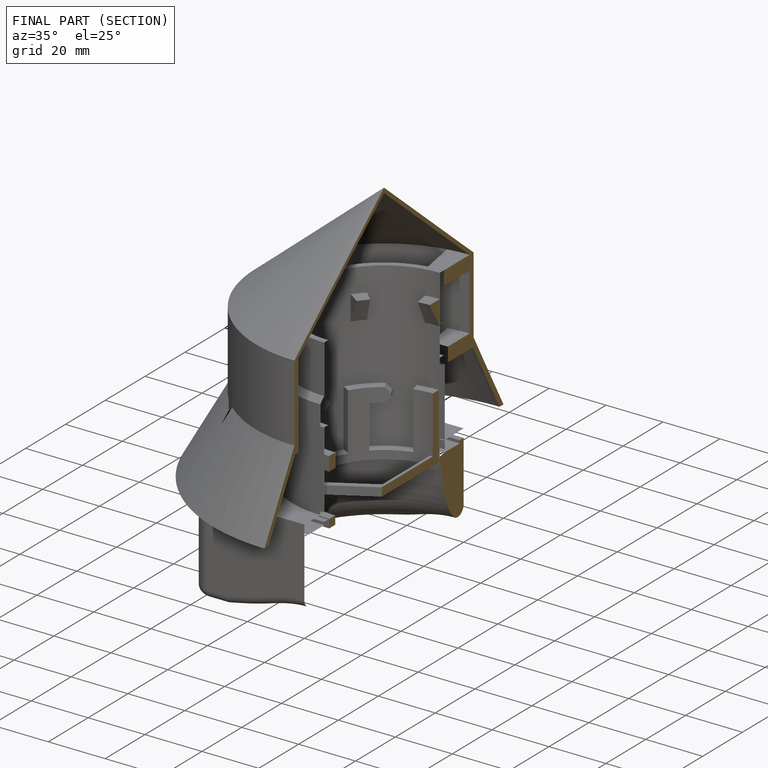
[diagram: finished part — half-section view (interior)]
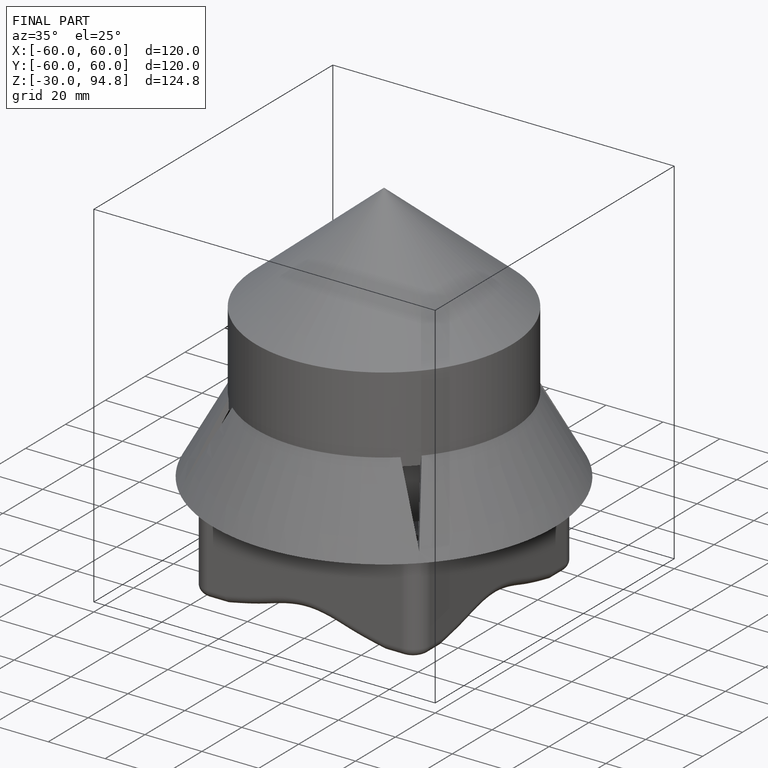
[diagram: finished part — iso view with bounding-box wireframe]
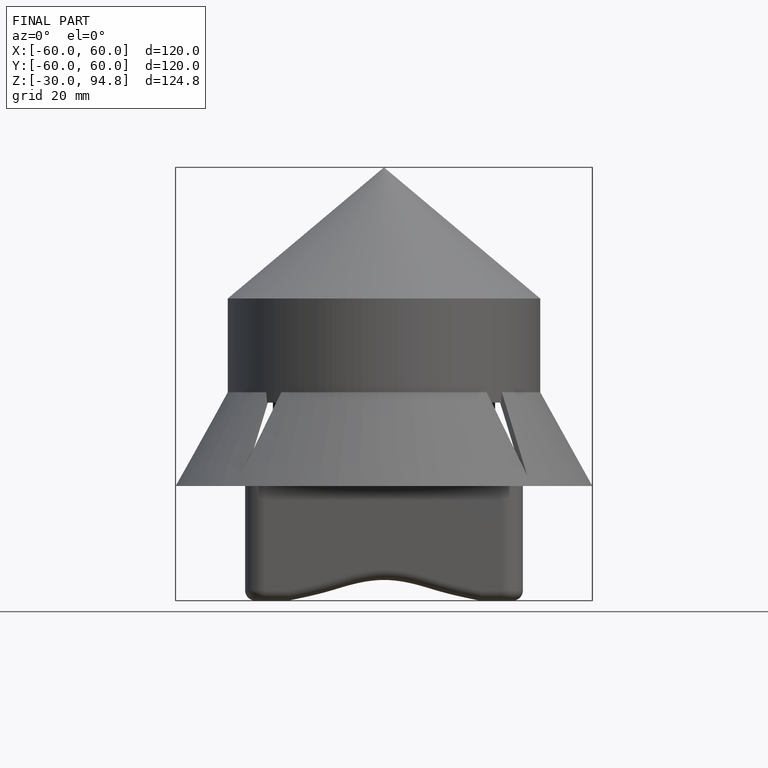
[diagram: finished part — front view with bounding-box wireframe]
